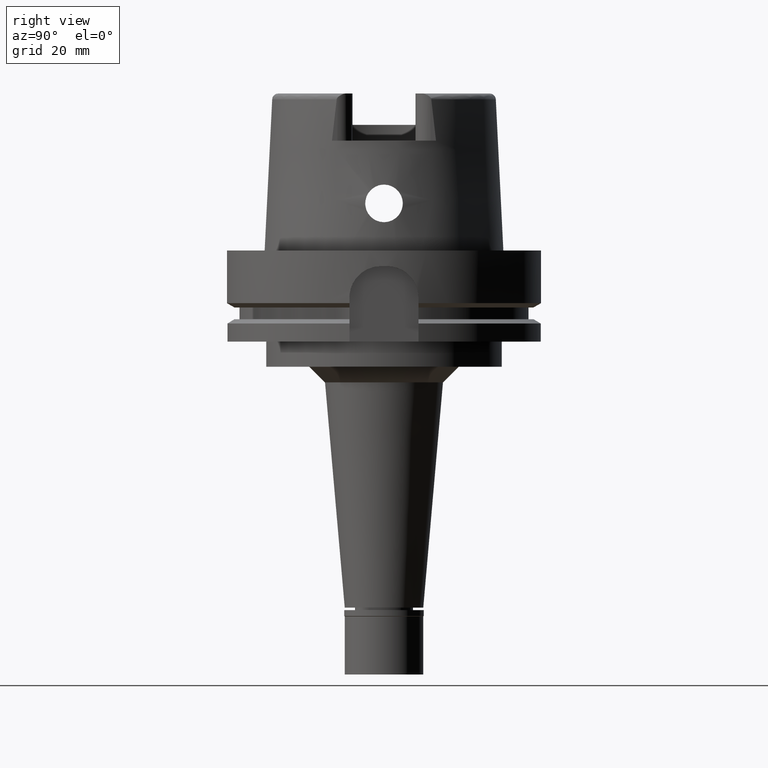
[diagram: clean part render]
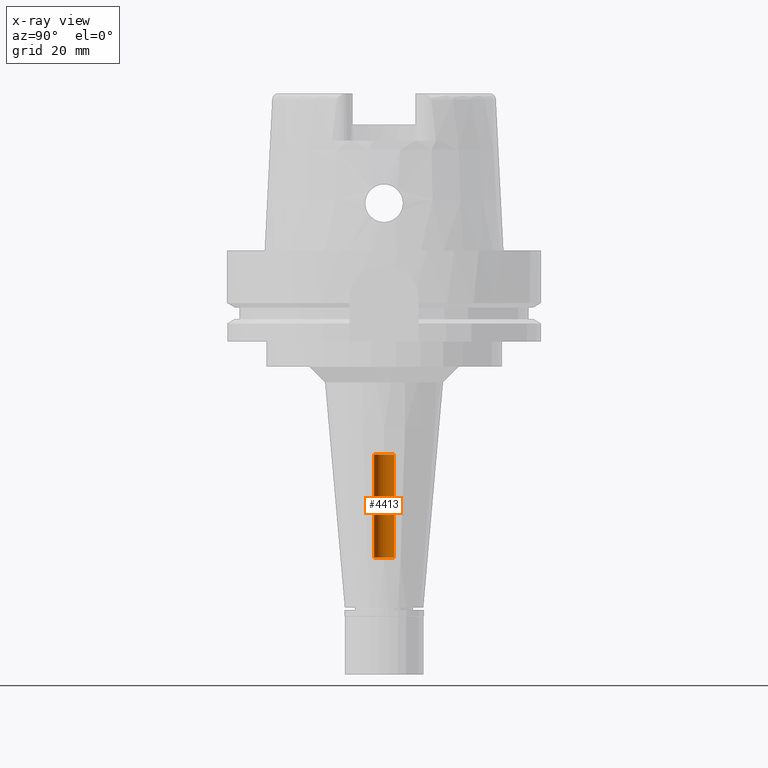
[diagram: x-ray — body ghosted, one internal face saturated and labeled with its STEP entity id]
A machine part, right view, then the same camera in x-ray: the body is ghosted and one INTERNAL B-rep face — a face not visible from any outside direction — is saturated and labeled: STEP entity #4413.
In plain terms, the highlighted cylindrical surface (edge-blend (fillet) strip) has radius 3.2 mm, axis along (0, 0, 1).
Its self-contained STEP definition (entity closure, byte-faithful):
#7 = DIRECTION ( 'NONE',  ( 0.0000000000000000000, 0.0000000000000000000, 1.000000000000000000 ) ) ;
#60 = CIRCLE ( 'NONE', #4575, 3.200000000000000178 ) ;
#123 = CARTESIAN_POINT ( 'NONE',  ( 0.0000000000000000000, 3.200000000000000178, -97.79999999999999716 ) ) ;
#273 = CARTESIAN_POINT ( 'NONE',  ( 0.0000000000000000000, -3.200000000000000178, -97.79999999999999716 ) ) ;
#372 = EDGE_LOOP ( 'NONE', ( #5450, #4798, #857, #4174 ) ) ;
#566 = CYLINDRICAL_SURFACE ( 'NONE', #1841, 3.200000000000000178 ) ;
#645 = EDGE_CURVE ( 'NONE', #3852, #1317, #1311, .T. ) ;
#857 = ORIENTED_EDGE ( 'NONE', *, *, #645, .T. ) ;
#1140 = DIRECTION ( 'NONE',  ( 0.0000000000000000000, 0.0000000000000000000, 1.000000000000000000 ) ) ;
#1164 = LINE ( 'NONE', #2132, #5035 ) ;
#1242 = EDGE_CURVE ( 'NONE', #1694, #1265, #60, .T. ) ;
#1265 = VERTEX_POINT ( 'NONE', #4071 ) ;
#1311 = CIRCLE ( 'NONE', #2305, 3.200000000000000178 ) ;
#1317 = VERTEX_POINT ( 'NONE', #123 ) ;
#1694 = VERTEX_POINT ( 'NONE', #5546 ) ;
#1719 = EDGE_CURVE ( 'NONE', #3852, #1265, #4303, .T. ) ;
#1841 = AXIS2_PLACEMENT_3D ( 'NONE', #2264, #3979, #3590 ) ;
#2132 = CARTESIAN_POINT ( 'NONE',  ( 0.0000000000000000000, 3.200000000000000178, -97.79999999999999716 ) ) ;
#2264 = CARTESIAN_POINT ( 'NONE',  ( 0.0000000000000000000, 0.0000000000000000000, -137.7400000000000091 ) ) ;
#2305 = AXIS2_PLACEMENT_3D ( 'NONE', #5279, #2309, #3502 ) ;
#2309 = DIRECTION ( 'NONE',  ( 0.0000000000000000000, 0.0000000000000000000, -1.000000000000000000 ) ) ;
#2668 = VECTOR ( 'NONE', #7, 1000.000000000000000 ) ;
#2778 = EDGE_CURVE ( 'NONE', #1317, #1694, #1164, .T. ) ;
#3187 = FACE_OUTER_BOUND ( 'NONE', #372, .T. ) ;
#3502 = DIRECTION ( 'NONE',  ( 0.0000000000000000000, -1.000000000000000000, 0.0000000000000000000 ) ) ;
#3590 = DIRECTION ( 'NONE',  ( 0.0000000000000000000, 1.000000000000000000, 0.0000000000000000000 ) ) ;
#3597 = CARTESIAN_POINT ( 'NONE',  ( 0.0000000000000000000, 0.0000000000000000000, -65.00000000000000000 ) ) ;
#3619 = DIRECTION ( 'NONE',  ( 0.0000000000000000000, 1.000000000000000000, 0.0000000000000000000 ) ) ;
#3852 = VERTEX_POINT ( 'NONE', #273 ) ;
#3979 = DIRECTION ( 'NONE',  ( 0.0000000000000000000, 0.0000000000000000000, 1.000000000000000000 ) ) ;
#4071 = CARTESIAN_POINT ( 'NONE',  ( 0.0000000000000000000, -3.200000000000000178, -65.00000000000000000 ) ) ;
#4101 = DIRECTION ( 'NONE',  ( 0.0000000000000000000, 0.0000000000000000000, 1.000000000000000000 ) ) ;
#4174 = ORIENTED_EDGE ( 'NONE', *, *, #2778, .T. ) ;
#4303 = LINE ( 'NONE', #4357, #2668 ) ;
#4357 = CARTESIAN_POINT ( 'NONE',  ( 0.0000000000000000000, -3.200000000000000178, -97.79999999999999716 ) ) ;
#4413 = ADVANCED_FACE ( 'NONE', ( #3187 ), #566, .F. ) ;
#4575 = AXIS2_PLACEMENT_3D ( 'NONE', #3597, #4101, #3619 ) ;
#4798 = ORIENTED_EDGE ( 'NONE', *, *, #1719, .F. ) ;
#5035 = VECTOR ( 'NONE', #1140, 1000.000000000000000 ) ;
#5279 = CARTESIAN_POINT ( 'NONE',  ( 0.0000000000000000000, 0.0000000000000000000, -97.79999999999999716 ) ) ;
#5450 = ORIENTED_EDGE ( 'NONE', *, *, #1242, .T. ) ;
#5546 = CARTESIAN_POINT ( 'NONE',  ( 0.0000000000000000000, 3.200000000000000178, -65.00000000000000000 ) ) ;